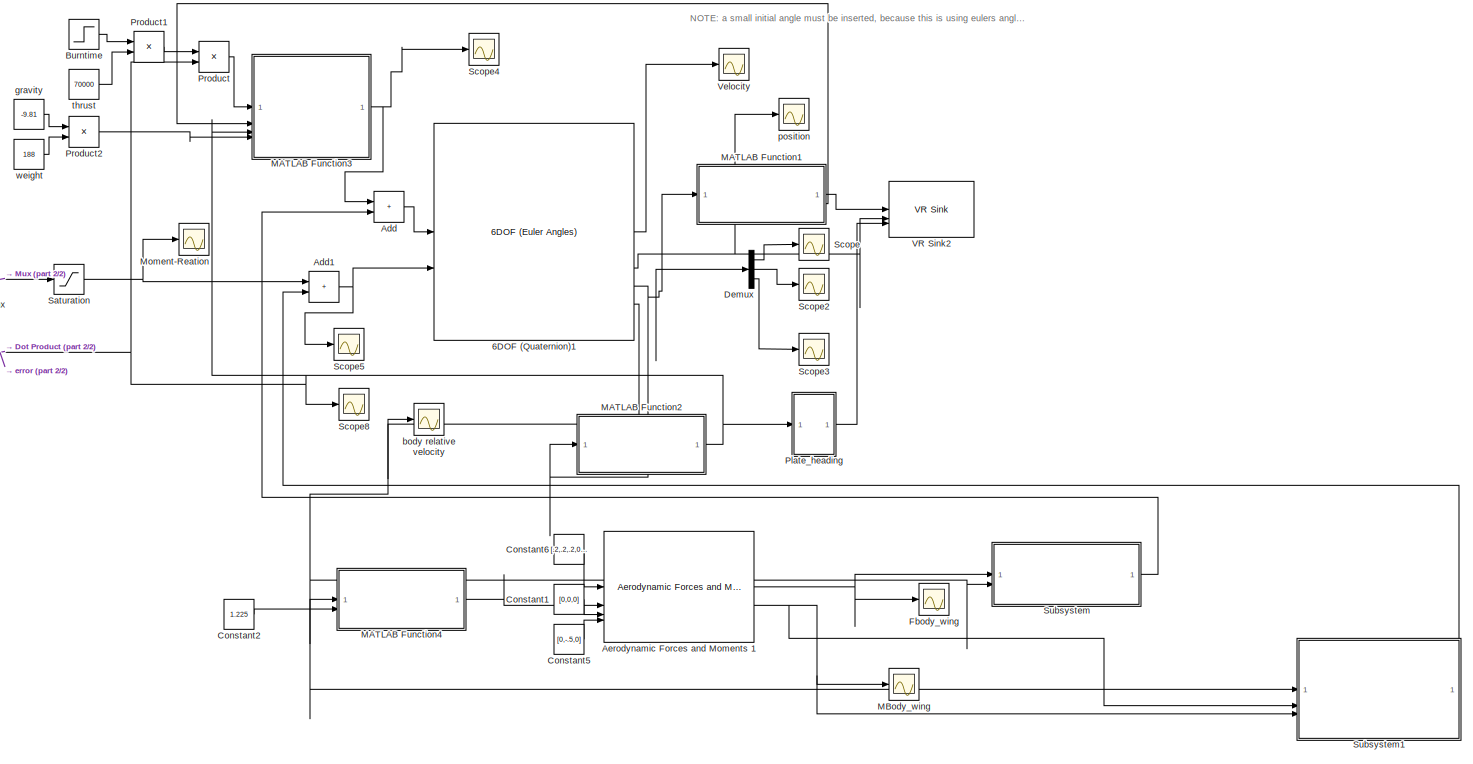
[diagram: root canvas - part 1/2, right side, full height]
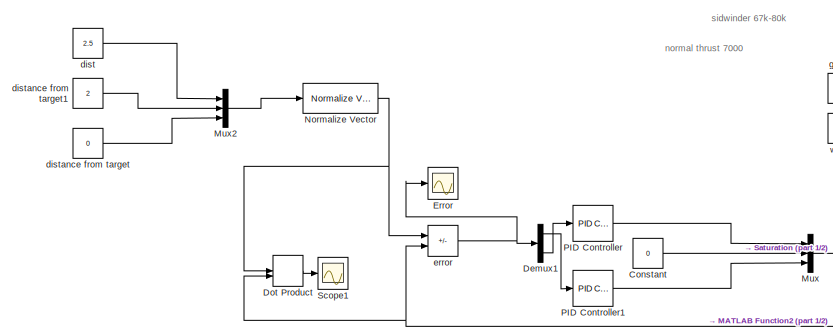
[diagram: root canvas - part 2/2, top left region]
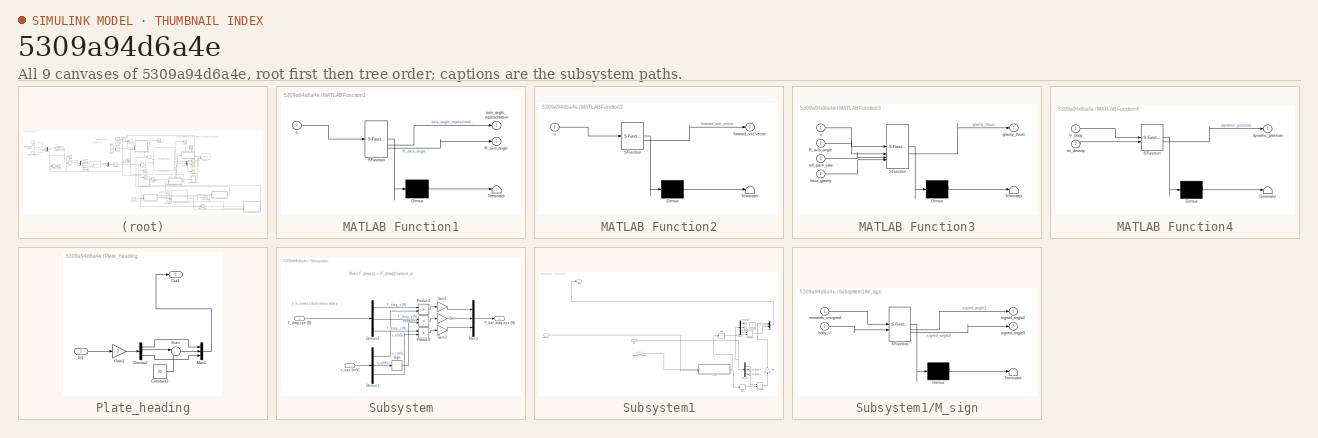
[diagram: thumbnail index - all 9 canvases of the model, root first then tree order]
MODEL slx_5309a94d6a4e
KIND model
CONFIG AbsTol = auto
CONFIG EnableMultiTasking = off
CONFIG FixedStep = auto
CONFIG MaxStep = auto
CONFIG MinStep = auto
CONFIG RelTol = 1e-3
CONFIG SampleTimeConstraint = Unconstrained
CONFIG SolverName = ode15s
CONFIG StartTime = 0.0
CONFIG StopTime = 400
BLOCK [Reference] 6DOF (Quaternion)1  REF=shared6dof/6DOF (Euler Angles)
  SourceBlock = shared6dof/6DOF (Euler Angles)
  SourceType = 6DOF EoM (Body Axis)
BLOCK [Sum] Add
  IconShape = rectangular
BLOCK [Sum] Add1
  IconShape = rectangular
BLOCK [Reference] Aerodynamic Forces and Moments 1  REF=aerolibadyn/Aerodynamic
Forces and Moments 
  SourceBlock = aerolibadyn/Aerodynamic\nForces and Moments
  SourceType = Aerodynamic Forces and Moments
BLOCK [Step] Burntime
  After = 0
  Before = 1
  SampleTime = 0
  Time = 30
BLOCK [Constant] Constant
  Value = 0
BLOCK [Constant] Constant1
  Value = [0,0,0]
BLOCK [Constant] Constant2
  Value = 1.225
BLOCK [Constant] Constant5
  Value = [0,-.5,0]
BLOCK [Constant] Constant6
  Value = [.2,.2,.2,0,0,0]
BLOCK [Demux] Demux
  Outputs = 3
BLOCK [Demux] Demux1
  Outputs = 3
BLOCK [DotProduct] Dot Product
  OutDataTypeStr = Inherit: Inherit via internal rule
BLOCK [Scope] Error
  Floating = off
  NumInputPorts = 1
  ScopeSpecificationString = Simulink.scopes.TimeScopeBlockCfg('CurrentConfiguration', extmgr.ConfigurationSet(extmgr.Configuration('Core','General UI',true),extmgr.Configuration('Core','Source UI',true),extmgr.Configuration('Sources','WiredSimulink',true,'DataLoggingVariableName','ScopeData1'),extmgr.Configuration('Visuals','Time Domain',true,'SerializedDisplays',{struct('MinYLimReal','-0.65726','MaxYLimReal','1.41397','YLab...<+1485ch>
BLOCK [Scope] Fbody_wing
  Floating = off
  NumInputPorts = 1
  ScopeSpecificationString = Simulink.scopes.TimeScopeBlockCfg('CurrentConfiguration', extmgr.ConfigurationSet(extmgr.Configuration('Core','General UI',true),extmgr.Configuration('Core','Source UI',true),extmgr.Configuration('Sources','WiredSimulink',true,'DataLoggingVariableName','ScopeData1'),extmgr.Configuration('Visuals','Time Domain',true,'SerializedDisplays',{struct('MinYLimReal','-171.96319','MaxYLimReal','162.66789','...<+1685ch>
BLOCK [SubSystem] MATLAB Function1
  ErrorFcn = Stateflow.Translate.translate
  PermitHierarchicalResolution = ExplicitOnly
  SFBlockType = MATLAB Function
  TreatAsAtomicUnit = on
BLOCK [Demux] MATLAB Function1/ Demux 
  Outputs = 1
BLOCK [S-Function] MATLAB Function1/ SFunction 
  EnableBusSupport = on
  FunctionName = sf_sfun
  PortCounts = [1 3]
  SFcnIsStateOwnerBlock = off
  SFunctionDeploymentMode = off
  Tag = Stateflow S-Function 1
BLOCK [Terminator] MATLAB Function1/ Terminator 
BLOCK [Outport] MATLAB Function1/R_axis_angle
  Port = 2
BLOCK [Outport] MATLAB Function1/axis_angle_representation
BLOCK [Inport] MATLAB Function1/u
BLOCK [SubSystem] MATLAB Function2
  ErrorFcn = Stateflow.Translate.translate
  PermitHierarchicalResolution = ExplicitOnly
  SFBlockType = MATLAB Function
  TreatAsAtomicUnit = on
BLOCK [Demux] MATLAB Function2/ Demux 
  Outputs = 1
BLOCK [S-Function] MATLAB Function2/ SFunction 
  EnableBusSupport = on
  FunctionName = sf_sfun
  PortCounts = [1 2]
  SFcnIsStateOwnerBlock = off
  SFunctionDeploymentMode = off
  Tag = Stateflow S-Function 2
BLOCK [Terminator] MATLAB Function2/ Terminator 
BLOCK [Outport] MATLAB Function2/forward_unit_vector
BLOCK [Inport] MATLAB Function2/u
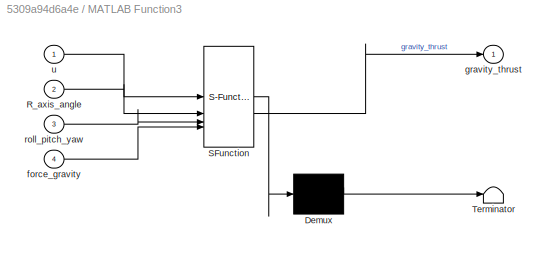
BLOCK [SubSystem] MATLAB Function3
  ErrorFcn = Stateflow.Translate.translate
  PermitHierarchicalResolution = ExplicitOnly
  SFBlockType = MATLAB Function
  TreatAsAtomicUnit = on
BLOCK [Demux] MATLAB Function3/ Demux 
  Outputs = 1
BLOCK [S-Function] MATLAB Function3/ SFunction 
  EnableBusSupport = on
  FunctionName = sf_sfun
  PortCounts = [4 2]
  SFcnIsStateOwnerBlock = off
  SFunctionDeploymentMode = off
  Tag = Stateflow S-Function 3
BLOCK [Terminator] MATLAB Function3/ Terminator 
BLOCK [Inport] MATLAB Function3/R_axis_angle
  Port = 2
BLOCK [Inport] MATLAB Function3/force_gravity
  Port = 4
BLOCK [Outport] MATLAB Function3/gravity_thrust
BLOCK [Inport] MATLAB Function3/roll_pitch_yaw
  Port = 3
BLOCK [Inport] MATLAB Function3/u
BLOCK [SubSystem] MATLAB Function4
  ErrorFcn = Stateflow.Translate.translate
  PermitHierarchicalResolution = ExplicitOnly
  SFBlockType = MATLAB Function
  TreatAsAtomicUnit = on
BLOCK [Demux] MATLAB Function4/ Demux 
  Outputs = 1
BLOCK [S-Function] MATLAB Function4/ SFunction 
  EnableBusSupport = on
  FunctionName = sf_sfun
  PortCounts = [2 2]
  SFcnIsStateOwnerBlock = off
  SFunctionDeploymentMode = off
  Tag = Stateflow S-Function 4
BLOCK [Terminator] MATLAB Function4/ Terminator 
BLOCK [Inport] MATLAB Function4/V_body
BLOCK [Inport] MATLAB Function4/air_density
  Port = 2
BLOCK [Outport] MATLAB Function4/dynamic_pressure
BLOCK [Scope] MBody_wing
  Floating = off
  NumInputPorts = 1
  ScopeSpecificationString = Simulink.scopes.TimeScopeBlockCfg('CurrentConfiguration', extmgr.ConfigurationSet(extmgr.Configuration('Core','General UI',true),extmgr.Configuration('Core','Source UI',true),extmgr.Configuration('Sources','WiredSimulink',true,'DataLoggingVariableName','ScopeData2'),extmgr.Configuration('Visuals','Time Domain',true,'SerializedDisplays',{struct('MinYLimReal','-74.35923','MaxYLimReal','126.11968','Y...<+1662ch>
BLOCK [Scope] Moment-Reation
  Floating = off
  NumInputPorts = 1
  ScopeSpecificationString = Simulink.scopes.TimeScopeBlockCfg('CurrentConfiguration', extmgr.ConfigurationSet(extmgr.Configuration('Core','General UI',true),extmgr.Configuration('Core','Source UI',true),extmgr.Configuration('Sources','WiredSimulink',true,'DataLoggingVariableName','ScopeData2'),extmgr.Configuration('Visuals','Time Domain',true,'SerializedDisplays',{struct('MinYLimReal','-2500.00000','MaxYLimReal','2500.00000'...<+1507ch>
BLOCK [Mux] Mux
  DisplayOption = bar
  Inputs = 3
BLOCK [Mux] Mux2
  DisplayOption = bar
  Inputs = 3
BLOCK [Reference] Normalize Vector  REF=vrlib/Utilities/Normalize Vector
  SourceBlock = vrlib/Utilities/Normalize Vector
  SourceType = Normalize Vector
BLOCK [Reference] PID Controller  REF=slpidlib/PID Controller
  SourceBlock = slpidlib/PID Controller
  SourceType = PID 1dof
BLOCK [Reference] PID Controller1  REF=slpidlib/PID Controller
  SourceBlock = slpidlib/PID Controller
  SourceType = PID 1dof
BLOCK [SubSystem] Plate_heading
BLOCK [Constant] Plate_heading/Constant3
  Value = 20
BLOCK [Demux] Plate_heading/Demux2
  Outputs = 3
BLOCK [Gain] Plate_heading/Gain1
  Gain = 3
BLOCK [Inport] Plate_heading/In1
BLOCK [Mux] Plate_heading/Mux1
  DisplayOption = bar
  Inputs = 3
BLOCK [Outport] Plate_heading/Out1
BLOCK [Sum] Plate_heading/Sum
  Inputs = |++
BLOCK [Product] Product
BLOCK [Product] Product1
BLOCK [Product] Product2
BLOCK [Saturate] Saturation
  LowerLimit = -2000
  UpperLimit = 2000
BLOCK [Scope] Scope
  Floating = off
  NumInputPorts = 1
  ScopeSpecificationString = Simulink.scopes.TimeScopeBlockCfg('CurrentConfiguration', extmgr.ConfigurationSet(extmgr.Configuration('Core','General UI',true),extmgr.Configuration('Core','Source UI',true),extmgr.Configuration('Sources','WiredSimulink',true,'DataLoggingVariableName','ScopeData3'),extmgr.Configuration('Visuals','Time Domain',true,'SerializedDisplays',{struct('MinYLimReal','-0.30924','MaxYLimReal','0.96011','YLab...<+1397ch>
BLOCK [Scope] Scope1
  Floating = off
  NumInputPorts = 1
  ScopeSpecificationString = Simulink.scopes.TimeScopeBlockCfg('CurrentConfiguration', extmgr.ConfigurationSet(extmgr.Configuration('Core','General UI',true),extmgr.Configuration('Core','Source UI',true),extmgr.Configuration('Sources','WiredSimulink',true,'DataLoggingVariableName','ScopeData9'),extmgr.Configuration('Visuals','Time Domain',true,'SerializedDisplays',{struct('MinYLimReal','0.74864','MaxYLimReal','1.02781','YLabe...<+1397ch>
BLOCK [Scope] Scope2
  Floating = off
  NumInputPorts = 1
  ScopeSpecificationString = Simulink.scopes.TimeScopeBlockCfg('CurrentConfiguration', extmgr.ConfigurationSet(extmgr.Configuration('Core','General UI',true),extmgr.Configuration('Core','Source UI',true),extmgr.Configuration('Sources','WiredSimulink',true,'DataLoggingVariableName','ScopeData4'),extmgr.Configuration('Visuals','Time Domain',true,'SerializedDisplays',{struct('MinYLimReal','-0.10209','MaxYLimReal','0.91884','YLab...<+1397ch>
BLOCK [Scope] Scope3
  Floating = off
  NumInputPorts = 1
  ScopeSpecificationString = Simulink.scopes.TimeScopeBlockCfg('CurrentConfiguration', extmgr.ConfigurationSet(extmgr.Configuration('Core','General UI',true),extmgr.Configuration('Core','Source UI',true),extmgr.Configuration('Sources','WiredSimulink',true,'DataLoggingVariableName','ScopeData5'),extmgr.Configuration('Visuals','Time Domain',true,'SerializedDisplays',{struct('MinYLimReal','-1.01451','MaxYLimReal','0.98539','YLab...<+1397ch>
BLOCK [Scope] Scope4
  Floating = off
  NumInputPorts = 1
  ScopeSpecificationString = Simulink.scopes.TimeScopeBlockCfg('CurrentConfiguration', extmgr.ConfigurationSet(extmgr.Configuration('Core','General UI',true),extmgr.Configuration('Core','Source UI',true),extmgr.Configuration('Sources','WiredSimulink',true,'DataLoggingVariableName','ScopeData6'),extmgr.Configuration('Visuals','Time Domain',true,'SerializedDisplays',{struct('MinYLimReal','-6254.36836','MaxYLimReal','9110.96664'...<+1489ch>
BLOCK [Scope] Scope5
  Floating = off
  NumInputPorts = 1
  ScopeSpecificationString = Simulink.scopes.TimeScopeBlockCfg('CurrentConfiguration', extmgr.ConfigurationSet(extmgr.Configuration('Core','General UI',true),extmgr.Configuration('Core','Source UI',true),extmgr.Configuration('Sources','WiredSimulink',true,'DataLoggingVariableName','ScopeData1'),extmgr.Configuration('Visuals','Time Domain',true,'SerializedDisplays',{struct('MinYLimReal','-74.35923','MaxYLimReal','126.11968','Y...<+1393ch>
BLOCK [Scope] Scope8
  Floating = off
  NumInputPorts = 1
  ScopeSpecificationString = Simulink.scopes.TimeScopeBlockCfg('CurrentConfiguration', extmgr.ConfigurationSet(extmgr.Configuration('Core','General UI',true),extmgr.Configuration('Core','Source UI',true),extmgr.Configuration('Sources','WiredSimulink',true,'DataLoggingVariableName','ScopeData7'),extmgr.Configuration('Visuals','Time Domain',true,'SerializedDisplays',{struct('MinYLimReal','-1.2493','MaxYLimReal','1.24992','YLabe...<+1445ch>
BLOCK [SubSystem] Subsystem
BLOCK [Demux] Subsystem/Demux1
  Outputs = 3
BLOCK [Demux] Subsystem/Demux3
  Outputs = 3
BLOCK [Outport] Subsystem/F_bar_drag,xyz (N)
BLOCK [Inport] Subsystem/F_drag,xyz (N)
BLOCK [Gain] Subsystem/Gain
  Gain = -1
BLOCK [Gain] Subsystem/Gain1
  Gain = -1
BLOCK [Gain] Subsystem/Gain2
  Gain = -1
BLOCK [Mux] Subsystem/Mux3
  DisplayOption = bar
  Inputs = 3
BLOCK [Product] Subsystem/Product1
BLOCK [Product] Subsystem/Product2
BLOCK [Product] Subsystem/Product3
BLOCK [Signum] Subsystem/Sign
BLOCK [Inport] Subsystem/v_xyz (m//s)
  Port = 2
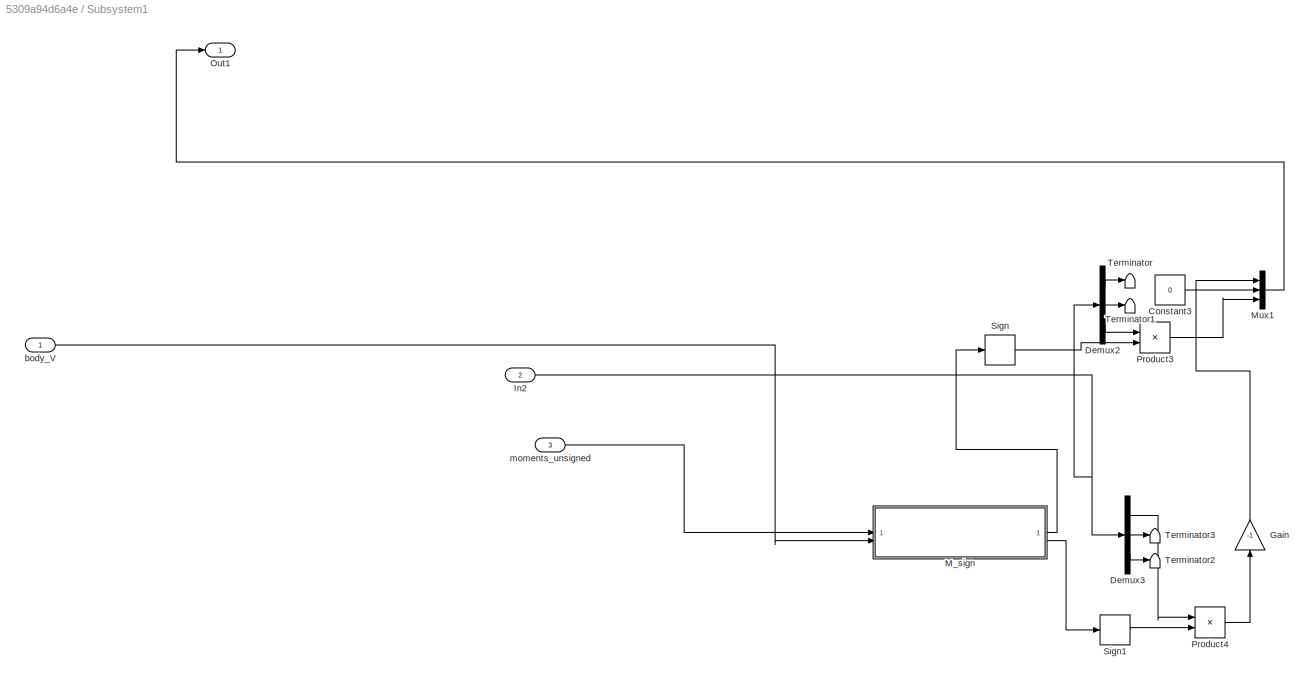
BLOCK [SubSystem] Subsystem1
BLOCK [Constant] Subsystem1/Constant3
  Value = 0
BLOCK [Demux] Subsystem1/Demux2
  Outputs = 3
BLOCK [Demux] Subsystem1/Demux3
  Outputs = 3
BLOCK [Gain] Subsystem1/Gain
  Gain = -1
  NameLocation = right
BLOCK [Inport] Subsystem1/In2
  Port = 2
BLOCK [SubSystem] Subsystem1/M_sign
  ErrorFcn = Stateflow.Translate.translate
  PermitHierarchicalResolution = ExplicitOnly
  SFBlockType = MATLAB Function
  TreatAsAtomicUnit = on
BLOCK [Demux] Subsystem1/M_sign/ Demux 
  Outputs = 1
BLOCK [S-Function] Subsystem1/M_sign/ SFunction 
  EnableBusSupport = on
  FunctionName = sf_sfun
  PortCounts = [2 3]
  SFcnIsStateOwnerBlock = off
  SFunctionDeploymentMode = off
  Tag = Stateflow S-Function 5
BLOCK [Terminator] Subsystem1/M_sign/ Terminator 
BLOCK [Inport] Subsystem1/M_sign/body_V
  Port = 2
BLOCK [Inport] Subsystem1/M_sign/moments_unsigned
BLOCK [Outport] Subsystem1/M_sign/signed_angleX
  Port = 2
BLOCK [Outport] Subsystem1/M_sign/signed_angleZ
BLOCK [Mux] Subsystem1/Mux1
  DisplayOption = bar
  Inputs = 3
BLOCK [Outport] Subsystem1/Out1
BLOCK [Product] Subsystem1/Product3
BLOCK [Product] Subsystem1/Product4
BLOCK [Signum] Subsystem1/Sign
BLOCK [Signum] Subsystem1/Sign1
BLOCK [Terminator] Subsystem1/Terminator
BLOCK [Terminator] Subsystem1/Terminator1
BLOCK [Terminator] Subsystem1/Terminator2
BLOCK [Terminator] Subsystem1/Terminator3
BLOCK [Inport] Subsystem1/body_V
BLOCK [Inport] Subsystem1/moments_unsigned
  Port = 3
BLOCK [Reference] VR Sink2  REF=vrlib/VR Sink
  InstantiateOnLoad = on
  SourceBlock = vrlib/VR Sink
  SourceType = Virtual Reality Sink
BLOCK [Scope] Velocity
  Floating = off
  NumInputPorts = 1
  ScopeSpecificationString = Simulink.scopes.TimeScopeBlockCfg('CurrentConfiguration', extmgr.ConfigurationSet(extmgr.Configuration('Core','General UI',true),extmgr.Configuration('Core','Source UI',true),extmgr.Configuration('Sources','WiredSimulink',true,'DataLoggingVariableName','ScopeData8'),extmgr.Configuration('Visuals','Time Domain',true,'SerializedDisplays',{struct('MinYLimReal','-186.92004','MaxYLimReal','681.8765','Y...<+1540ch>
BLOCK [Scope] body relative velocity
  Floating = off
  NumInputPorts = 1
  ScopeSpecificationString = Simulink.scopes.TimeScopeBlockCfg('CurrentConfiguration', extmgr.ConfigurationSet(extmgr.Configuration('Core','General UI',true),extmgr.Configuration('Core','Source UI',true),extmgr.Configuration('Sources','WiredSimulink',true,'DataLoggingVariableName','ScopeData5'),extmgr.Configuration('Visuals','Time Domain',true,'SerializedDisplays',{struct('MinYLimReal','-220.2336','MaxYLimReal','220.2336','YL...<+1584ch>
BLOCK [Constant] dist
  Value = 2.5
BLOCK [Constant] distance from target
  Value = 0
BLOCK [Constant] distance from target1
  Value = 2
BLOCK [Sum] error
  IconShape = rectangular
  Inputs = +-
BLOCK [Constant] gravity
  Value = -9.81
BLOCK [Scope] position
  Floating = off
  NumInputPorts = 1
  ScopeSpecificationString = Simulink.scopes.TimeScopeBlockCfg('CurrentConfiguration', extmgr.ConfigurationSet(extmgr.Configuration('Core','General UI',true),extmgr.Configuration('Core','Source UI',true),extmgr.Configuration('Sources','WiredSimulink',true),extmgr.Configuration('Visuals','Time Domain',true,'SerializedDisplays',{struct('MinYLimReal','-2304.98794','MaxYLimReal','19910.72384','YLabelReal','','MinYLimMag','  0.000...<+1556ch>
BLOCK [Constant] thrust
  Value = 70000
BLOCK [Constant] weight
  Value = 188
ANNOTATION (root): NOTE: a small initial angle must be inserted, because this is using eulers angle which do not work at exact angles, this is generally not a problem once the simulation starts,
ANNOTATION (root): normal thrust 7000
ANNOTATION (root): sidwinder 67k-80k
ANNOTATION Subsystem: Make F_{drag,y} = -|F_{drag}|*sgn(vel_y)
ANNOTATION Subsystem: y is correct dont mess with y
LINE 6DOF (Quaternion)1:1 -> Velocity:1
NET 6DOF (Quaternion)1:2 -> VR Sink2:2, position:1
NET 6DOF (Quaternion)1:3 -> Demux:1, MATLAB Function1:1, MATLAB Function2:1
NET 6DOF (Quaternion)1:5 -> MATLAB Function4:1, Subsystem1:1, Subsystem:2, body relative velocity:1
NET Add1:1 -> 6DOF (Quaternion)1:2, Scope5:1
LINE Add:1 -> 6DOF (Quaternion)1:1
NET Aerodynamic Forces and Moments 1:1 -> Fbody_wing:1, Subsystem:1
NET Aerodynamic Forces and Moments 1:2 -> MBody_wing:1, Subsystem1:2, Subsystem1:3
LINE Burntime:1 -> Product1:1
LINE Constant1:1 -> Aerodynamic Forces and Moments 1:3
LINE Constant2:1 -> MATLAB Function4:2
LINE Constant5:1 -> Aerodynamic Forces and Moments 1:4
LINE Constant6:1 -> Aerodynamic Forces and Moments 1:1
LINE Constant:1 -> Mux:2
LINE Demux1:1 -> PID Controller1:1
LINE Demux1:3 -> PID Controller:1
LINE Demux:1 -> Scope:1
LINE Demux:2 -> Scope2:1
LINE Demux:3 -> Scope3:1
LINE Dot Product:1 -> Scope1:1
LINE MATLAB Function1:1 -> VR Sink2:1
LINE MATLAB Function1:2 -> MATLAB Function3:2
NET MATLAB Function2:1 -> Dot Product:2, MATLAB Function3:3, Plate_heading:1, Product:2, Scope8:1, error:2
NET MATLAB Function3:1 -> Add:1, Scope4:1
LINE MATLAB Function4:1 -> Aerodynamic Forces and Moments 1:2
LINE Mux2:1 -> Normalize Vector:1
LINE Mux:1 -> Saturation:1
NET Normalize Vector:1 -> Dot Product:1, error:1
LINE PID Controller1:1 -> Mux:3
LINE PID Controller:1 -> Mux:1
LINE Plate_heading/Constant3:1 -> Plate_heading/Sum:2
LINE Plate_heading/Demux2:1 -> Plate_heading/Mux1:1
LINE Plate_heading/Demux2:2 -> Plate_heading/Sum:1
LINE Plate_heading/Demux2:3 -> Plate_heading/Mux1:3
LINE Plate_heading/Gain1:1 -> Plate_heading/Demux2:1
LINE Plate_heading/In1:1 -> Plate_heading/Gain1:1
LINE Plate_heading/Mux1:1 -> Plate_heading/Out1:1
LINE Plate_heading/Sum:1 -> Plate_heading/Mux1:2
LINE Plate_heading:1 -> VR Sink2:3
LINE Product1:1 -> Product:1
LINE Product2:1 -> MATLAB Function3:4
LINE Product:1 -> MATLAB Function3:1
NET Saturation:1 -> Add1:1, Moment-Reation:1
LINE Subsystem/Demux1:1 -> Subsystem/Product1:2
LINE Subsystem/Demux1:2 -> Subsystem/Sign:1
LINE Subsystem/Demux1:3 -> Subsystem/Product2:2
LINE Subsystem/Demux3:1 -> Subsystem/Product1:1
LINE Subsystem/Demux3:2 -> Subsystem/Product3:1
LINE Subsystem/Demux3:3 -> Subsystem/Product2:1
LINE Subsystem/F_drag,xyz (N):1 -> Subsystem/Demux3:1
LINE Subsystem/Gain1:1 -> Subsystem/Mux3:1
LINE Subsystem/Gain2:1 -> Subsystem/Mux3:3
LINE Subsystem/Gain:1 -> Subsystem/Mux3:2
LINE Subsystem/Mux3:1 -> Subsystem/F_bar_drag,xyz (N):1
LINE Subsystem/Product1:1 -> Subsystem/Gain1:1
LINE Subsystem/Product2:1 -> Subsystem/Gain2:1
LINE Subsystem/Product3:1 -> Subsystem/Gain:1
LINE Subsystem/Sign:1 -> Subsystem/Product3:2
LINE Subsystem/v_xyz (m//s):1 -> Subsystem/Demux1:1
LINE Subsystem1/Constant3:1 -> Subsystem1/Mux1:2
LINE Subsystem1/Demux2:1 -> Subsystem1/Terminator:1
LINE Subsystem1/Demux2:2 -> Subsystem1/Terminator1:1
LINE Subsystem1/Demux2:3 -> Subsystem1/Product3:1
LINE Subsystem1/Demux3:1 -> Subsystem1/Product4:1
LINE Subsystem1/Demux3:2 -> Subsystem1/Terminator3:1
LINE Subsystem1/Demux3:3 -> Subsystem1/Terminator2:1
LINE Subsystem1/Gain:1 -> Subsystem1/Mux1:1
NET Subsystem1/In2:1 -> Subsystem1/Demux2:1, Subsystem1/Demux3:1
LINE Subsystem1/M_sign:1 -> Subsystem1/Sign:1
LINE Subsystem1/M_sign:2 -> Subsystem1/Sign1:1
LINE Subsystem1/Mux1:1 -> Subsystem1/Out1:1
LINE Subsystem1/Product3:1 -> Subsystem1/Mux1:3
LINE Subsystem1/Product4:1 -> Subsystem1/Gain:1
LINE Subsystem1/Sign1:1 -> Subsystem1/Product4:2
LINE Subsystem1/Sign:1 -> Subsystem1/Product3:2
LINE Subsystem1/body_V:1 -> Subsystem1/M_sign:2
LINE Subsystem1/moments_unsigned:1 -> Subsystem1/M_sign:1
LINE Subsystem1:1 -> Add1:2
LINE Subsystem:1 -> Add:2
LINE dist:1 -> Mux2:1
LINE distance from target1:1 -> Mux2:2
LINE distance from target:1 -> Mux2:3
NET error:1 -> Demux1:1, Error:1
LINE gravity:1 -> Product2:1
LINE thrust:1 -> Product1:2
LINE weight:1 -> Product2:2
note: NET lines group one-source signal fan-out (src -> all destinations, sorted); 1:1 wires keep LINE
CHART MATLAB Function1 states=1 transitions=1
  STATE_LABEL 'eML_blk_kernel()'
  STATE_LABEL 'SCRIPT:\nfunction [axis_angle_representation, R_axis_angle] = fcn(u)\n\n%this converts euler anlges to axis-angle representation,\n%this is needed because Vsink uses that format\nroll = u(1);\npitch = u(2);\nyaw = u(3);\n\n% Calculate rotation matrix\nRz = [cos(yaw), -sin(yaw), 0;\n      sin(yaw), cos(yaw), 0;\n      0, 0, 1];\nRy = [cos(pitch), 0, sin(pitch);\n      0, 1, 0;\n      -sin(pitch), 0, cos(pitch)];\n...<+2314ch>'
CHART MATLAB Function2 states=1 transitions=1
  STATE_LABEL 'eML_blk_kernel()'
  STATE_LABEL 'SCRIPT:\nfunction forward_unit_vector = fcn(u)\n\n%this converts euler anlges to axis-angle representation,\n%this is needed because Vsink uses that format\nroll = u(1);\npitch = u(2);\nyaw = u(3);\n\n% Calculate rotation matrix\nRz = [cos(yaw), -sin(yaw), 0;\n      sin(yaw), cos(yaw), 0;\n      0, 0, 1];\nRy = [cos(pitch), 0, sin(pitch);\n      0, 1, 0;\n      -sin(pitch), 0, cos(pitch)];\nRx = [1, 0, 0;\n      0...<+472ch>'
CHART MATLAB Function3 states=1 transitions=1
  STATE_LABEL 'eML_blk_kernel()'
  STATE_LABEL "SCRIPT:\nfunction gravity_thrust = fcn(u,R_axis_angle, roll_pitch_yaw, force_gravity)\n%this adds gravity to the thrust so that gravity only acts down\nworld_gravity_force = [0,force_gravity,0]';\n\n\n\n%fprintf('R axis angle: \\n')\n%disp(R_axis_angle)\n\n% Transform the gravity vector to the body's local reference frame\ngravity_local = R_axis_angle' * world_gravity_force;\n\n%disp(gravity_local)\n\n\n\ngravity_t...<+187ch>"
CHART MATLAB Function4 states=1 transitions=1
  STATE_LABEL 'eML_blk_kernel()'
  STATE_LABEL 'SCRIPT:\nfunction dynamic_pressure = fcn(V_body,air_density)\n    dynamic_pressure = .5*air_density*(V_body.^2);\n    '
CHART Subsystem1/M_sign states=1 transitions=1
  STATE_LABEL 'eML_blk_kernel()'
  STATE_LABEL 'SCRIPT:\nfunction [signed_angleZ,signed_angleX]  = fcn( moments_unsigned,body_V)\n\n%dot = x1*x2 + y1*y2       Dot product between [x1, y1] and [x2, y2]\n%det = x1*y2 - y1*x2      # Determinant\n%angle = atan2(det, dot)  # atan2(y, x) or atan2(sin, cos)\n\n\n%determine the sign of the moment about the Z-axis\nXY_velocity = [body_V(1), body_V(2)];\nY_axis = [0,1];\nXY_dot = dot(XY_velocity,Y_axis);\nXY_det = X...<+415ch>'
CHART  states=0 transitions=0
CHART  states=0 transitions=0
CHART  states=0 transitions=0
CHART  states=0 transitions=0
CHART  states=0 transitions=0
